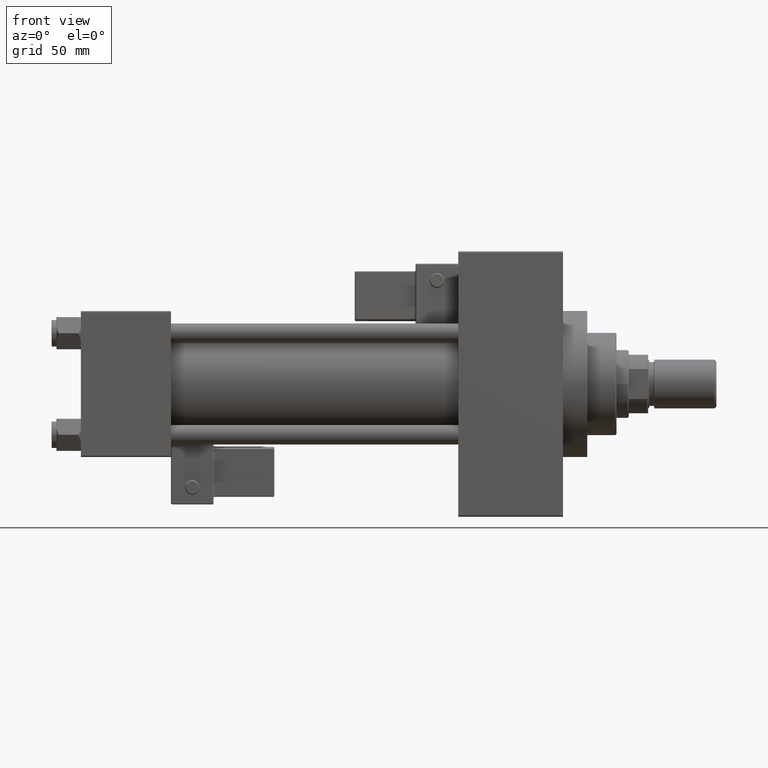
[diagram: clean part render]
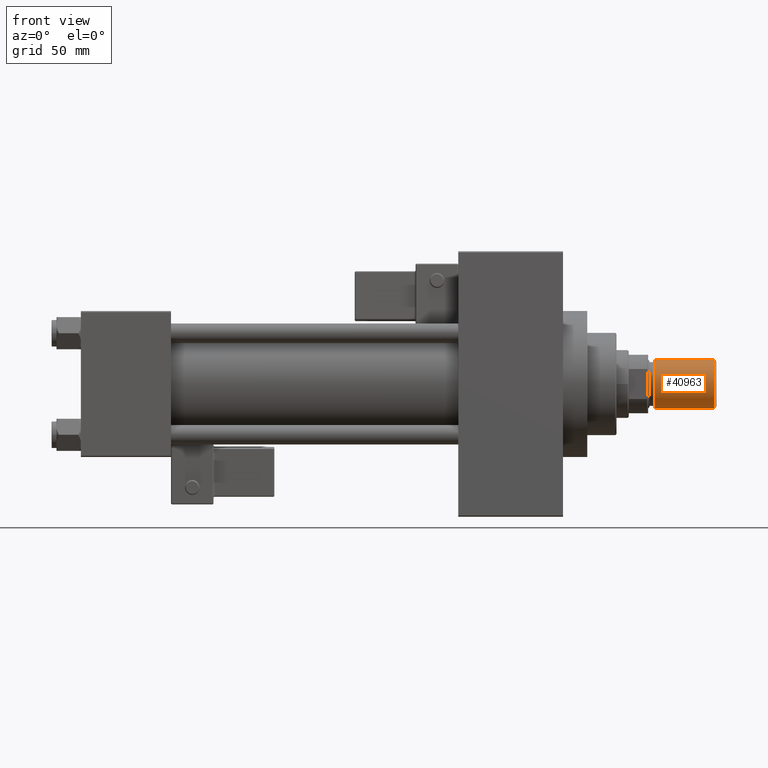
[diagram: same view with one face highlighted and labeled with its STEP entity id]
A machine part, front view. The second image highlights one B-rep face of the part: STEP entity #40963.
In plain terms, the highlighted cylindrical surface (edge-blend (fillet) strip) has radius 10 mm, axis along (1, -0, -0).
Its self-contained STEP definition (entity closure, byte-faithful):
#355 = ORIENTED_EDGE ( 'NONE', *, *, #49919, .F. ) ;
#2597 = EDGE_CURVE ( 'NONE', #31647, #40006, #30865, .T. ) ;
#2904 = DIRECTION ( 'NONE',  ( -0.000000000000000000, -0.000000000000000000, -1.000000000000000000 ) ) ;
#6446 = CARTESIAN_POINT ( 'NONE',  ( 10.00000000000000000, 1.224646799147353256E-15, 25.50000000000000000 ) ) ;
#9591 = ORIENTED_EDGE ( 'NONE', *, *, #2597, .T. ) ;
#9793 = VECTOR ( 'NONE', #23484, 1000.000000000000000 ) ;
#10538 = CARTESIAN_POINT ( 'NONE',  ( -10.00000000000000000, 0.000000000000000000, 25.50000000000000000 ) ) ;
#11499 = AXIS2_PLACEMENT_3D ( 'NONE', #18918, #22940, #23177 ) ;
#12234 = CARTESIAN_POINT ( 'NONE',  ( 0.000000000000000000, 0.000000000000000000, 25.50000000000000000 ) ) ;
#12860 = VECTOR ( 'NONE', #2904, 1000.000000000000000 ) ;
#14717 = ORIENTED_EDGE ( 'NONE', *, *, #25496, .F. ) ;
#15524 = FACE_OUTER_BOUND ( 'NONE', #25817, .T. ) ;
#16038 = DIRECTION ( 'NONE',  ( 1.000000000000000000, 0.000000000000000000, 0.000000000000000000 ) ) ;
#16522 = CYLINDRICAL_SURFACE ( 'NONE', #29723, 10.00000000000000000 ) ;
#17151 = CIRCLE ( 'NONE', #11499, 10.00000000000000000 ) ;
#18918 = CARTESIAN_POINT ( 'NONE',  ( 0.000000000000000000, 0.000000000000000000, 25.50000000000000000 ) ) ;
#19803 = CARTESIAN_POINT ( 'NONE',  ( 0.000000000000000000, 0.000000000000000000, 0.8000000000000055955 ) ) ;
#22940 = DIRECTION ( 'NONE',  ( 0.000000000000000000, 0.000000000000000000, 1.000000000000000000 ) ) ;
#23177 = DIRECTION ( 'NONE',  ( 1.000000000000000000, 0.000000000000000000, 0.000000000000000000 ) ) ;
#23326 = DIRECTION ( 'NONE',  ( -1.000000000000000000, 0.000000000000000000, 0.000000000000000000 ) ) ;
#23484 = DIRECTION ( 'NONE',  ( -0.000000000000000000, -0.000000000000000000, -1.000000000000000000 ) ) ;
#24063 = DIRECTION ( 'NONE',  ( -0.000000000000000000, -0.000000000000000000, -1.000000000000000000 ) ) ;
#25109 = CARTESIAN_POINT ( 'NONE',  ( 10.00000000000000000, 1.224646799147353256E-15, 0.8000000000000055955 ) ) ;
#25496 = EDGE_CURVE ( 'NONE', #41215, #40006, #45018, .T. ) ;
#25817 = EDGE_LOOP ( 'NONE', ( #14717, #355, #29280, #9591 ) ) ;
#26139 = CARTESIAN_POINT ( 'NONE',  ( -10.00000000000000000, 0.000000000000000000, 0.8000000000000055955 ) ) ;
#28004 = CARTESIAN_POINT ( 'NONE',  ( -10.00000000000000000, 0.000000000000000000, 25.50000000000000000 ) ) ;
#29280 = ORIENTED_EDGE ( 'NONE', *, *, #46101, .T. ) ;
#29723 = AXIS2_PLACEMENT_3D ( 'NONE', #12234, #24063, #23326 ) ;
#29847 = CARTESIAN_POINT ( 'NONE',  ( 10.00000000000000000, 1.224646799147353256E-15, 25.50000000000000000 ) ) ;
#30865 = CIRCLE ( 'NONE', #38940, 10.00000000000000000 ) ;
#31647 = VERTEX_POINT ( 'NONE', #26139 ) ;
#31804 = LINE ( 'NONE', #28004, #9793 ) ;
#35189 = DIRECTION ( 'NONE',  ( -0.000000000000000000, -0.000000000000000000, 1.000000000000000000 ) ) ;
#38940 = AXIS2_PLACEMENT_3D ( 'NONE', #19803, #35189, #16038 ) ;
#40006 = VERTEX_POINT ( 'NONE', #25109 ) ;
#40963 = ADVANCED_FACE ( 'NONE', ( #15524 ), #16522, .T. ) ;
#41215 = VERTEX_POINT ( 'NONE', #6446 ) ;
#45018 = LINE ( 'NONE', #29847, #12860 ) ;
#46101 = EDGE_CURVE ( 'NONE', #46392, #31647, #31804, .T. ) ;
#46392 = VERTEX_POINT ( 'NONE', #10538 ) ;
#49919 = EDGE_CURVE ( 'NONE', #46392, #41215, #17151, .T. ) ;